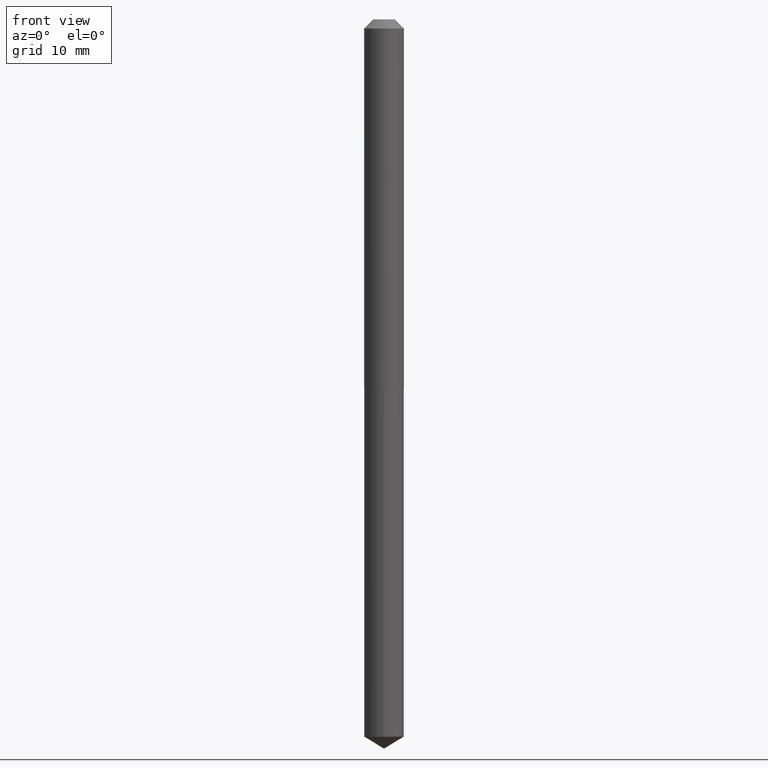
[diagram: clean part render]
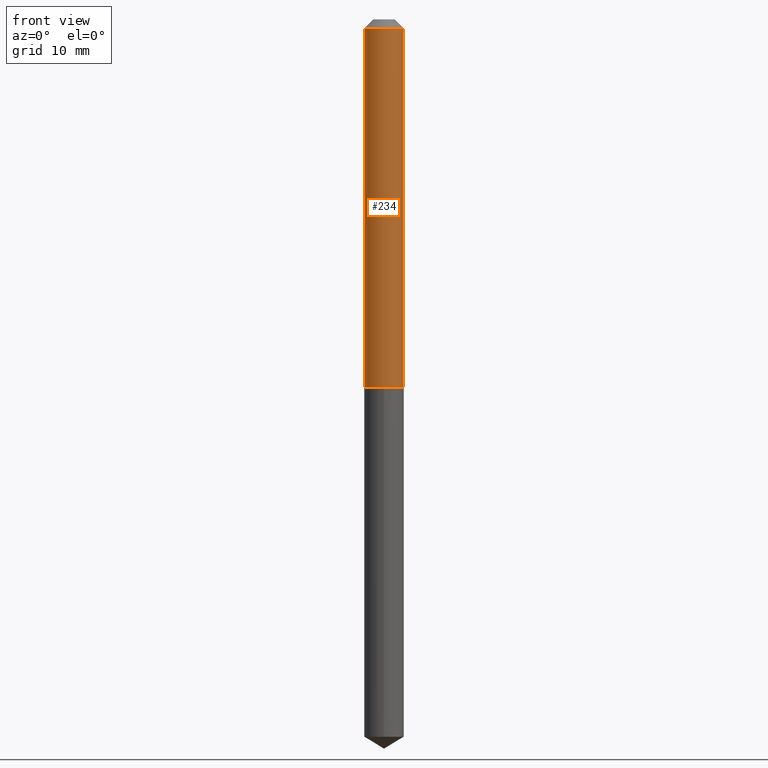
[diagram: same view with one face highlighted and labeled with its STEP entity id]
A machine part, front view. The second image highlights one B-rep face of the part: STEP entity #234.
In plain terms, the highlighted cylindrical surface (edge-blend (fillet) strip) has radius 1.7272 mm, axis along (-0, 0, 1).
Its self-contained STEP definition (entity closure, byte-faithful):
#2 = ORIENTED_EDGE ( 'NONE', *, *, #338, .F. ) ;
#12 = VERTEX_POINT ( 'NONE', #210 ) ;
#18 = DIRECTION ( 'NONE',  ( -2.445468806185136597E-29, 3.491481338843145583E-15, 1.000000000000000000 ) ) ;
#19 = DIRECTION ( 'NONE',  ( 1.000000000000000000, -6.982962677686267499E-15, 0.000000000000000000 ) ) ;
#31 = VECTOR ( 'NONE', #143, 39.37007874015748143 ) ;
#61 = VERTEX_POINT ( 'NONE', #385 ) ;
#74 = CARTESIAN_POINT ( 'NONE',  ( -0.06800000000000000488, -1.771891449408448018E-15, -0.03125000000000020817 ) ) ;
#78 = CARTESIAN_POINT ( 'NONE',  ( 7.642090019328602662E-31, -1.091087918388490267E-16, -0.03125000000000020817 ) ) ;
#82 = LINE ( 'NONE', #87, #31 ) ;
#83 = DIRECTION ( 'NONE',  ( -2.445468806185136597E-29, 3.491481338843145583E-15, 1.000000000000000000 ) ) ;
#87 = CARTESIAN_POINT ( 'NONE',  ( 0.06800000000000008815, -4.748414620826667201E-16, 3.315800207541240207E-30 ) ) ;
#100 = CIRCLE ( 'NONE', #367, 0.06800000000000015754 ) ;
#121 = EDGE_CURVE ( 'NONE', #12, #61, #82, .T. ) ;
#123 = ORIENTED_EDGE ( 'NONE', *, *, #307, .F. ) ;
#129 = CARTESIAN_POINT ( 'NONE',  ( 3.082513430196365653E-29, -4.401012227611786413E-15, -1.260500000000000398 ) ) ;
#130 = CARTESIAN_POINT ( 'NONE',  ( -0.06800000000000015754, -3.917843167294917857E-15, -1.260500000000000398 ) ) ;
#131 = LINE ( 'NONE', #164, #246 ) ;
#143 = DIRECTION ( 'NONE',  ( -2.445468806185136877E-29, 3.491481338843145188E-15, 1.000000000000000000 ) ) ;
#164 = CARTESIAN_POINT ( 'NONE',  ( -0.06800000000000008815, 4.831690603168687527E-16, -3.344875861373340259E-30 ) ) ;
#169 = CIRCLE ( 'NONE', #282, 0.06800000000000000488 ) ;
#187 = FACE_OUTER_BOUND ( 'NONE', #272, .T. ) ;
#203 = DIRECTION ( 'NONE',  ( 1.000000000000000000, -6.982962677686265922E-15, 4.876176775795935232E-29 ) ) ;
#210 = CARTESIAN_POINT ( 'NONE',  ( 0.06800000000000015754, -4.875853689694453527E-15, -1.260500000000000398 ) ) ;
#219 = ORIENTED_EDGE ( 'NONE', *, *, #121, .T. ) ;
#224 = EDGE_CURVE ( 'NONE', #340, #12, #100, .T. ) ;
#234 = ADVANCED_FACE ( 'NONE', ( #187 ), #263, .T. ) ;
#246 = VECTOR ( 'NONE', #319, 39.37007874015748143 ) ;
#263 = CYLINDRICAL_SURFACE ( 'NONE', #270, 0.06800000000000008815 ) ;
#270 = AXIS2_PLACEMENT_3D ( 'NONE', #358, #83, #203 ) ;
#272 = EDGE_LOOP ( 'NONE', ( #123, #334, #219, #2 ) ) ;
#282 = AXIS2_PLACEMENT_3D ( 'NONE', #78, #18, #19 ) ;
#283 = VERTEX_POINT ( 'NONE', #74 ) ;
#307 = EDGE_CURVE ( 'NONE', #340, #283, #131, .T. ) ;
#319 = DIRECTION ( 'NONE',  ( -2.445468806185136877E-29, 3.491481338843145188E-15, 1.000000000000000000 ) ) ;
#334 = ORIENTED_EDGE ( 'NONE', *, *, #224, .T. ) ;
#338 = EDGE_CURVE ( 'NONE', #283, #61, #169, .T. ) ;
#340 = VERTEX_POINT ( 'NONE', #130 ) ;
#342 = DIRECTION ( 'NONE',  ( 1.000000000000000000, -6.982962677686258822E-15, 0.000000000000000000 ) ) ;
#358 = CARTESIAN_POINT ( 'NONE',  ( 0.000000000000000000, 0.000000000000000000, 0.000000000000000000 ) ) ;
#367 = AXIS2_PLACEMENT_3D ( 'NONE', #129, #375, #342 ) ;
#375 = DIRECTION ( 'NONE',  ( -2.445468806185136597E-29, 3.491481338843145583E-15, 1.000000000000000000 ) ) ;
#385 = CARTESIAN_POINT ( 'NONE',  ( 0.06800000000000000488, -5.839502539215152291E-16, -0.03125000000000020817 ) ) ;